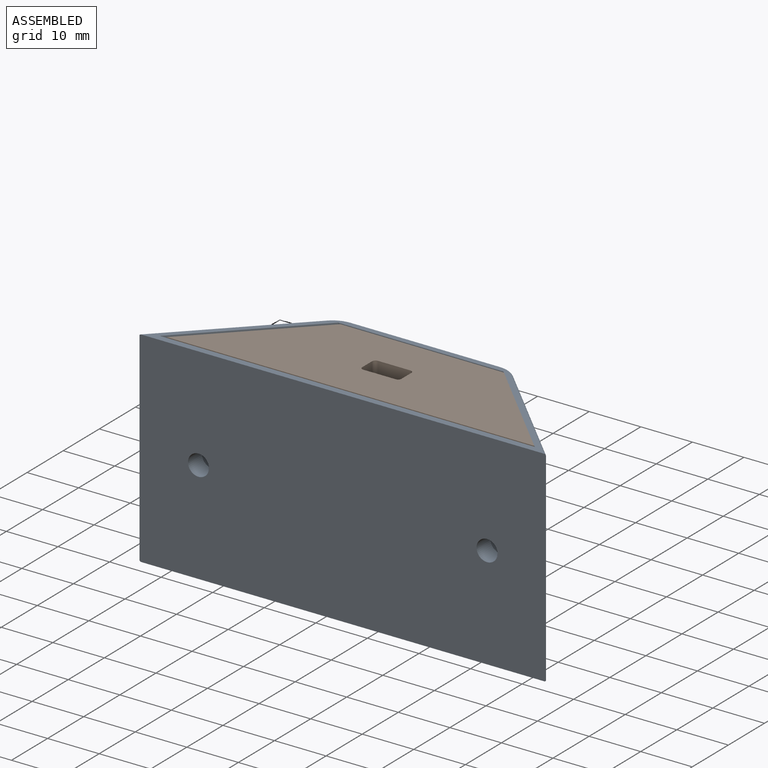
[diagram: assembled view]
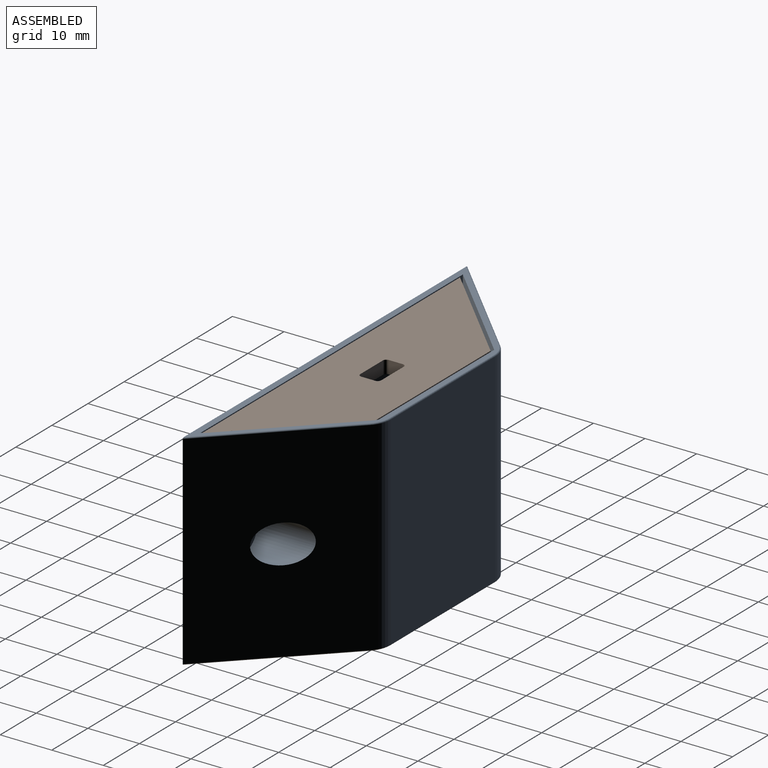
[diagram: assembled view, second angle]
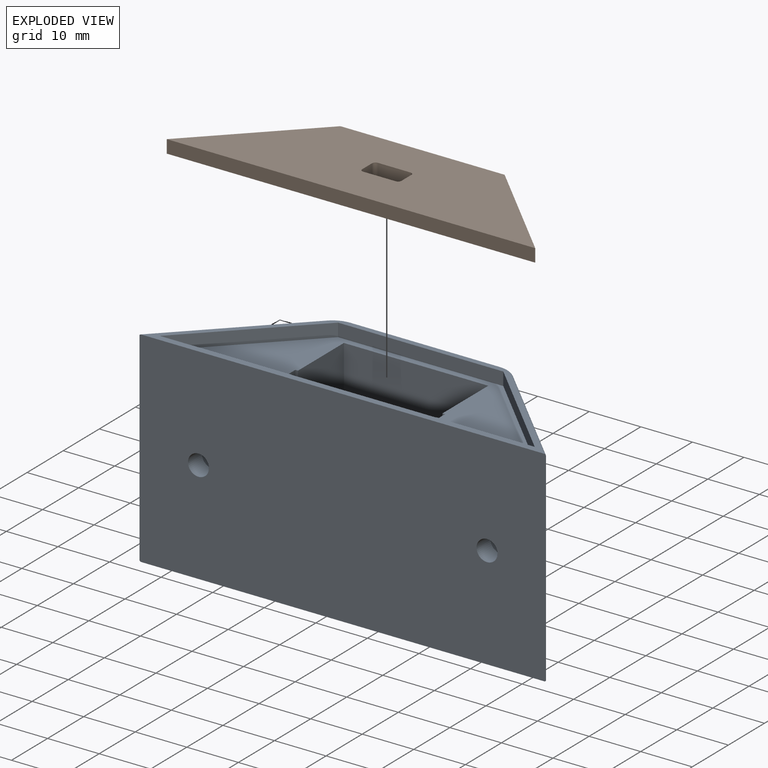
[diagram: exploded view]
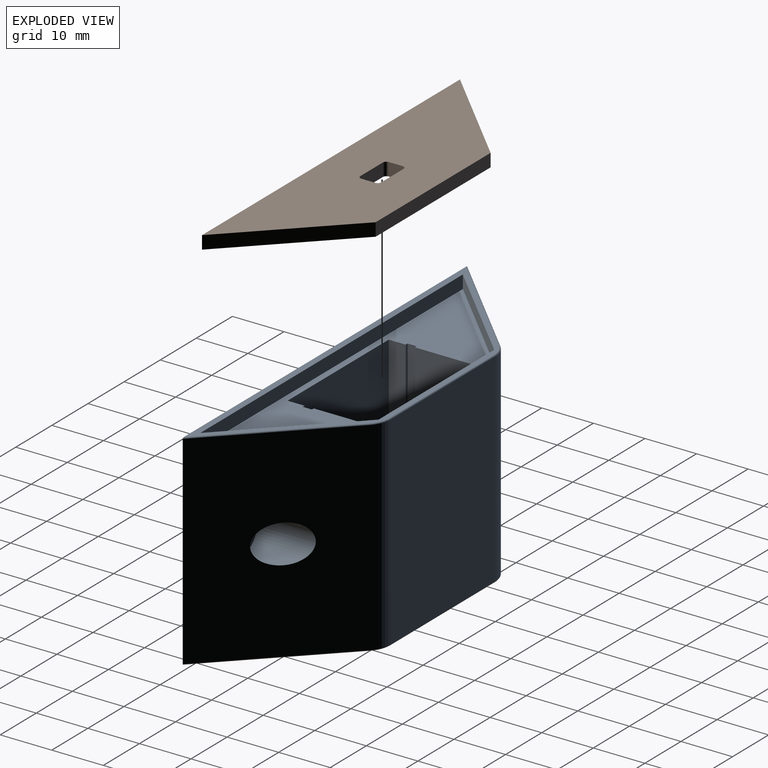
[diagram: exploded view, second angle]
ASSEMBLY  parts=2 mates=2
PART A: 54 faces, bbox 80.4x25x41.5 mm
  f0: cylinder r=2.03mm len=4.06mm, axis (0,1,0), area 48.6mm2, adj f5,f33
  f1: cylinder r=2.03mm len=4.06mm, axis (0,1,0), area 48.6mm2, adj f5,f31
  f2: plane 72.68x20.32mm, normal (0,0,1), area 564.1mm2, adj f13,f14,f15,f16,f17,f18,f19,f20
  f3: plane 39.37x28.89mm, normal (0,1,0), area 1137.3mm2, adj f34,f35,f46,f51
  f4: plane 40.95x22.95mm, normal (-0.71,0.71,0), area 1127.6mm2, adj f5,f30,f34,f48,f53
  f5: plane 78.92x39.98mm, normal (0,-1,0), area 3117mm2, adj f0,f1,f4,f10,f12,f29,f44,f48
  f6: plane 13.32x1.5mm, normal (0,1,0), area 16.9mm2, adj f7,f9,f11,f37,f40,f42
  f7: plane 6.03x1.5mm, normal (1,0,0), area 7.7mm2, adj f6,f8,f11,f36,f40,f41
  f8: plane 13.32x1.5mm, normal (0,-1,0), area 16.9mm2, adj f7,f9,f11,f38,f41,f43
  f9: plane 6.03x1.5mm, normal (-1,0,0), area 7.7mm2, adj f6,f8,f11,f39,f42,f43
  f10: plane 40.95x22.95mm, normal (0.71,0.71,0), area 1127.6mm2, adj f5,f32,f35,f44,f49
  f11: plane 29.03x17.78mm, normal (0,0,1), area 420.8mm2, adj f6,f7,f8,f9,f13,f14,f15,f16
  f12: plane 78.43x22.94mm, normal (0,0,-1), area 1119.3mm2, adj f5,f36,f37,f38,f39,f40,f41,f42
  f13: plane 34.8x0.51mm, normal (0,1,0), area 17.7mm2, adj f2,f11,f14,f24
  f14: plane 34.8x1.78mm, normal (1,0,0), area 61.9mm2, adj f2,f11,f13,f15
  f15: plane 34.8x0.51mm, normal (0,-1,0), area 17.7mm2, adj f2,f11,f14,f16
  f16: plane 34.8x12.7mm, normal (1,0,0), area 441.9mm2, adj f2,f11,f15,f17
  f17: plane 34.8x28.02mm, normal (0,-1,0), area 974.9mm2, adj f2,f11,f16,f18
  f18: plane 34.8x12.7mm, normal (-1,0,0), area 441.9mm2, adj f2,f11,f17,f19
  f19: plane 34.8x0.51mm, normal (0,-1,0), area 17.7mm2, adj f2,f11,f18,f20
  f20: plane 34.8x1.78mm, normal (-1,0,0), area 61.9mm2, adj f2,f11,f19,f21
  f21: plane 34.8x0.51mm, normal (0,1,0), area 17.7mm2, adj f2,f11,f20,f22
  f22: plane 34.8x3.3mm, normal (-1,0,0), area 114.9mm2, adj f2,f11,f21,f23
  f23: plane 34.8x28.02mm, normal (0,1,0), area 974.9mm2, adj f2,f11,f22,f24
  f24: plane 34.8x3.3mm, normal (1,0,0), area 114.9mm2, adj f2,f11,f13,f23
  f25: plane 20.32x20.32mm, normal (0.71,-0.71,0), area 73mm2, adj f2,f26,f28,f29
  f26: plane 32.04x2.54mm, normal (0,-1,0), area 81.4mm2, adj f2,f25,f27,f29
  f27: plane 20.32x20.32mm, normal (-0.71,-0.71,0), area 73mm2, adj f2,f26,f28,f29
  f28: plane 72.68x2.54mm, normal (0,1,0), area 184.6mm2, adj f2,f25,f27,f29
  f29: plane 78.1x22.61mm, normal (0,0,1), area 189.4mm2, adj f5,f25,f26,f27,f28,f49,f50,f51
  f30: cylinder r=3.75mm len=11.37mm, axis (0,1,0), area 176.4mm2, adj f4,f31
  f31: plane 7.49x7.49mm, normal (0,1,0), area 31.1mm2, adj f1,f30
  f32: cylinder r=3.75mm len=11.37mm, axis (0,1,0), area 176.4mm2, adj f10,f33
  f33: plane 7.49x7.49mm, normal (0,1,0), area 31.1mm2, adj f0,f32
  f34: cylinder r=5.08mm len=39.37mm, axis (0,0,1), area 157.1mm2, adj f3,f4,f47,f52
  f35: cylinder r=5.08mm len=39.37mm, axis (0,0,-1), area 157.1mm2, adj f3,f10,f45,f50
  f36: plane 7.25x1.27mm, normal (0.71,0,-0.71), area 10.7mm2, adj f7,f12,f40,f41
  f37: plane 14.54x1.27mm, normal (0,0.71,-0.71), area 23.8mm2, adj f6,f12,f40,f42
  f38: plane 14.54x1.27mm, normal (0,-0.71,-0.71), area 23.8mm2, adj f8,f12,f41,f43
  f39: plane 7.25x1.27mm, normal (-0.71,0,-0.71), area 10.7mm2, adj f9,f12,f42,f43
  f40: cylinder r=0.89mm len=1.9mm, axis (0.58,0.58,0.58), area 1.8mm2, adj f6,f7,f12,f36,f37
  f41: cylinder r=0.89mm len=1.9mm, axis (0.58,-0.58,0.58), area 1.8mm2, adj f7,f8,f12,f36,f38
  f42: cylinder r=0.89mm len=1.9mm, axis (0.58,-0.58,-0.58), area 1.8mm2, adj f6,f9,f12,f37,f39
  f43: cylinder r=0.89mm len=1.9mm, axis (0.58,0.58,-0.58), area 1.8mm2, adj f8,f9,f12,f38,f39
  f44: cylinder r=0.25mm len=21.55mm, axis (-0.71,0.71,0), area 12mm2, adj f5,f10,f12,f45
  f45: torus R=4.83mm, axis (0,0,1), area 1.6mm2, adj f12,f35,f44,f46
  f46: cylinder r=0.25mm len=28.89mm, axis (-1,0,0), area 11.5mm2, adj f3,f12,f45,f47
  f47: torus R=4.83mm, axis (0,0,1), area 1.6mm2, adj f12,f34,f46,f48
  f48: cylinder r=0.25mm len=21.55mm, axis (-0.71,-0.71,0), area 12mm2, adj f4,f5,f12,f47
  f49: cylinder r=0.25mm len=21.55mm, axis (0.71,-0.71,0), area 12mm2, adj f5,f10,f29,f50
  f50: torus R=4.83mm, axis (0,0,1), area 1.6mm2, adj f29,f35,f49,f51
  f51: cylinder r=0.25mm len=28.89mm, axis (1,0,0), area 11.5mm2, adj f3,f29,f50,f52
  f52: torus R=4.83mm, axis (0,0,1), area 1.6mm2, adj f29,f34,f51,f53
  f53: cylinder r=0.25mm len=21.55mm, axis (0.71,0.71,0), area 12mm2, adj f4,f5,f29,f52
PART B: 14 faces, bbox 71.5x19.8x2.5 mm
  f0: plane 71.46x19.81mm, normal (0,0,1), area 992.6mm2, adj f2,f3,f4,f5,f6,f7,f8,f9
  f1: plane 71.46x19.81mm, normal (0,0,-1), area 992.6mm2, adj f2,f3,f4,f5,f6,f7,f8,f9
  f2: plane 31.83x2.54mm, normal (0,1,0), area 80.9mm2, adj f0,f1,f3,f5
  f3: plane 19.81x19.81mm, normal (-0.71,0.71,0), area 71.2mm2, adj f0,f1,f2,f4
  f4: plane 71.46x2.54mm, normal (0,-1,0), area 181.5mm2, adj f0,f1,f3,f5
  f5: plane 19.81x19.81mm, normal (0.71,0.71,0), area 71.2mm2, adj f0,f1,f2,f4
  f6: plane 2.74x2.54mm, normal (-1,0,0), area 7mm2, adj f0,f1,f7,f13
  f7: cylinder r=0.66mm len=2.54mm, axis (0,0,1), area 2.6mm2, adj f0,f1,f6,f8
  f8: plane 6.3x2.54mm, normal (0,-1,0), area 16mm2, adj f0,f1,f7,f9
  f9: cylinder r=0.66mm len=2.54mm, axis (0,0,1), area 2.6mm2, adj f0,f1,f8,f10
  f10: plane 2.74x2.54mm, normal (1,0,0), area 7mm2, adj f0,f1,f9,f11
  f11: cylinder r=0.66mm len=2.54mm, axis (0,0,1), area 2.6mm2, adj f0,f1,f10,f12
  f12: plane 6.3x2.54mm, normal (0,1,0), area 16mm2, adj f0,f1,f11,f13
  f13: cylinder r=0.66mm len=2.54mm, axis (0,0,1), area 2.6mm2, adj f0,f1,f6,f12
PLACE A t=(32.79,30.23,3.49)mm
PLACE B t=(74.93,28.36,40.83)mm
MATE parallel A.f2 <-> B.f1  axis (0,0,1) through (8.74,31.87,40.83)mm
MATE parallel B.f5 <-> A.f27  axis (0.71,0.71,0) through (61.28,31.87,42.1)mm
